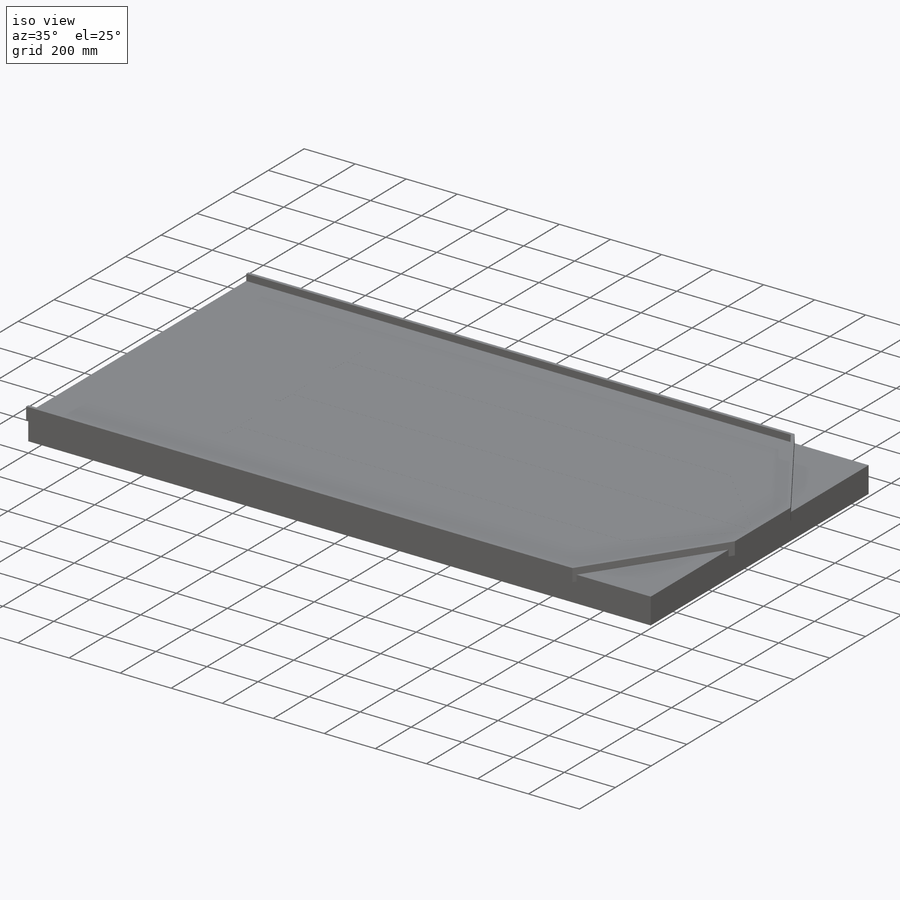
[diagram: iso view]
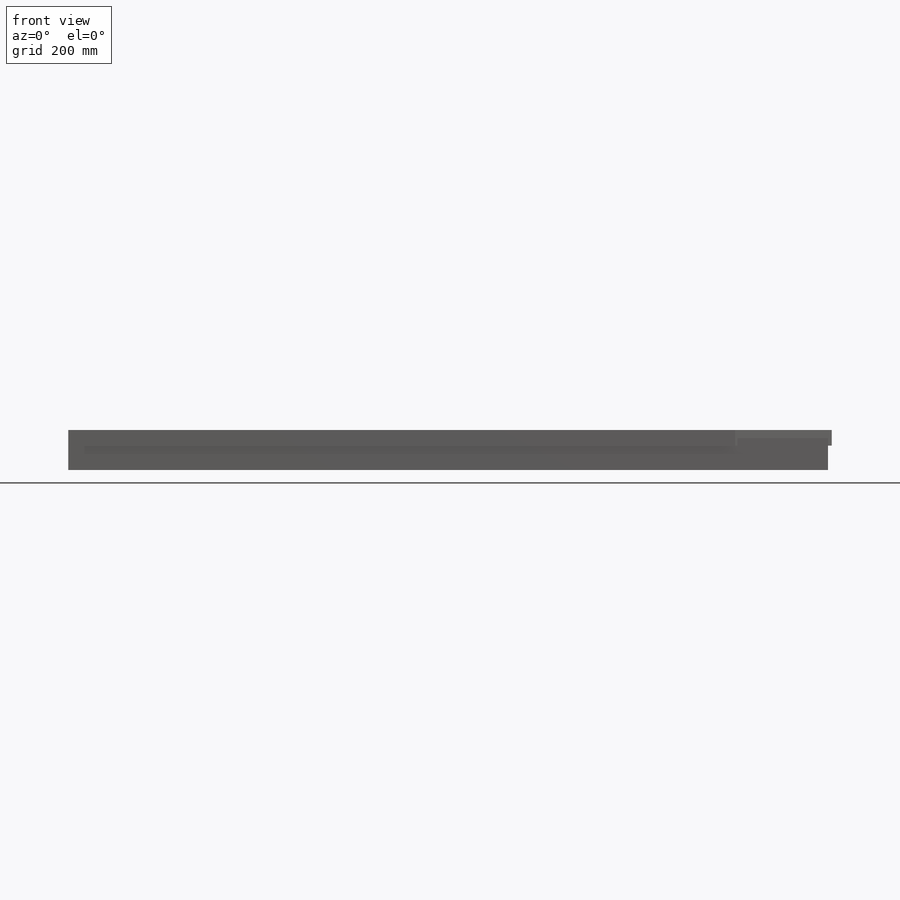
[diagram: front view]
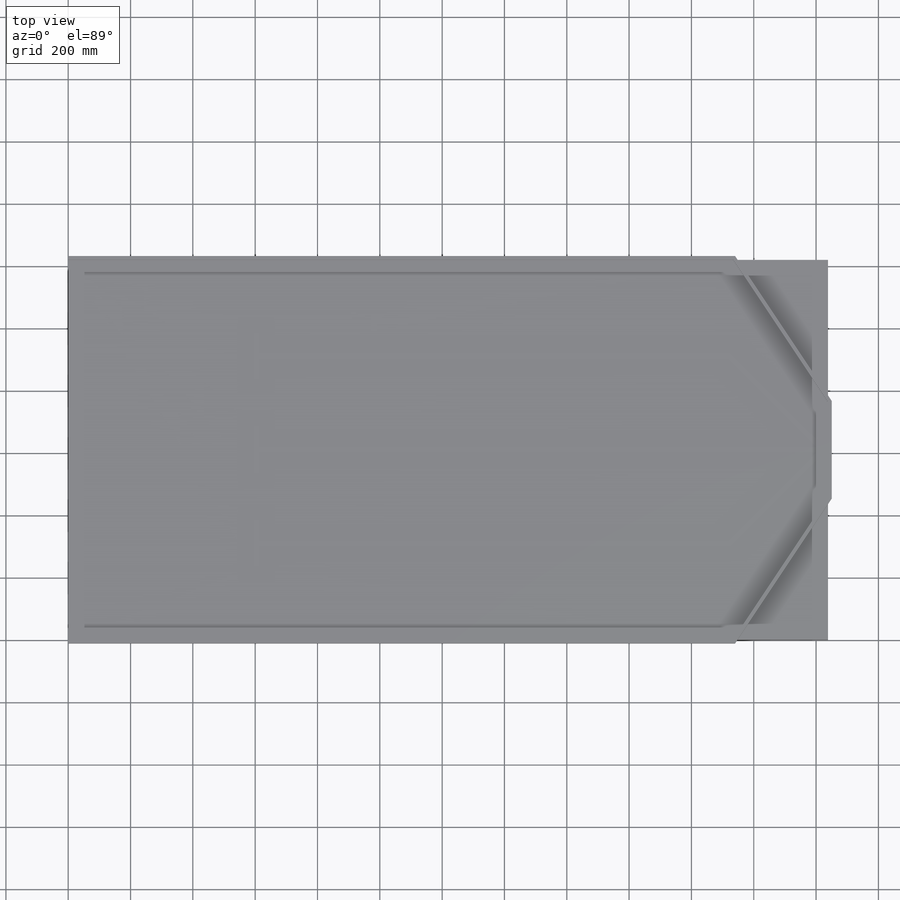
[diagram: top view]
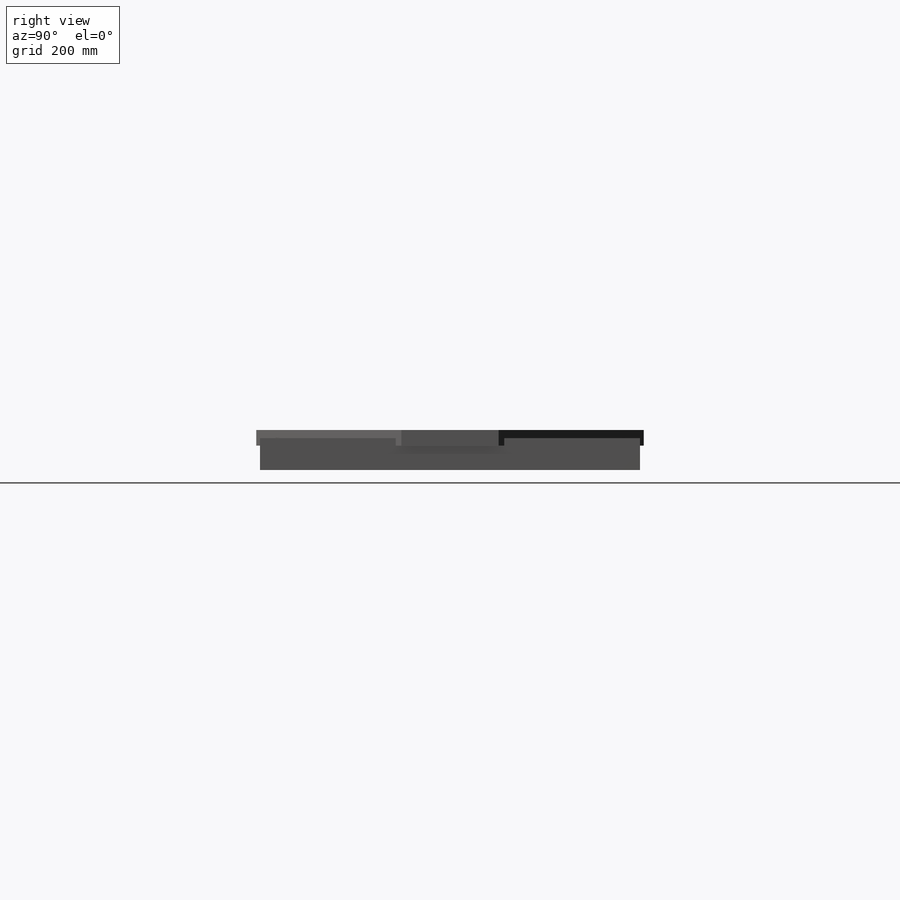
[diagram: right view]
SOLIDWORKS PART (.sldprt)
format: sldprt  version: not decoded by parser v0  size: 259,072 bytes
history: native  units: mm
features: sketch x3, extrude x2, material x1 (+11 scaffold rows collapsed)
feature tree (17):
  scaffold x11  (default folders/planes/origin — collapsed)
  material  "Material <not specified>"
  sketch  "Sketch1"  dims[D1=1219.2mm D2=2438.4mm]
  extrude  "Boss-Extrude1"  Depth=102mm
  sketch  "Sketch2"  dims[c1.D1=304.8mm c1.D2=304.8mm c2.D1=26.0mm c2.D2=24.0mm c2.D5=12.0mm c2.D6=10.0mm c2.D7=5.0mm]
  sketch  "Sketch3"  dims[c1.D1=9.0mm c1.D2=18.0mm c1.D3=300.0mm c1.D4=75.0mm c1.D5=150.0mm c1.D6=18.0mm c1.D7=66.0mm c1.D8=18.0mm c1.D9=300.0mm c1.D10=~523.204502mm c2.D10=45.0deg c2.D11=18.0mm c2.D12=18.0mm c2.D13=20.0mm c2.D3=~593.985938mm]
  extrude  "Boss-Extrude2"  Depth=0.17mm
decode coverage: 5 of 5 modeling features carry decoded parameters
note: ~ marks probable driven/reference dimensions
note: suppression state not decoded; provenance and decode notes live in map.json
